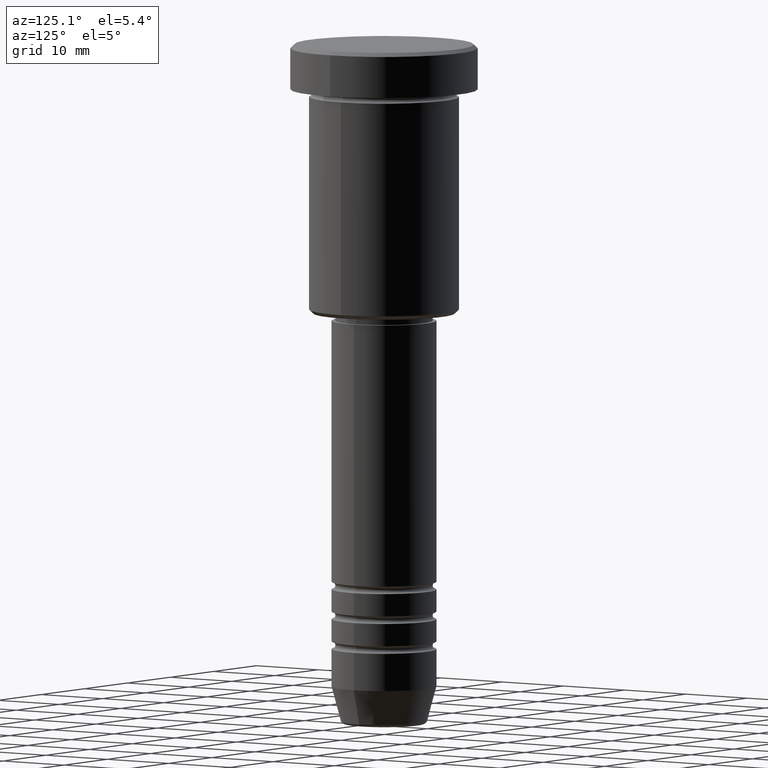
[diagram: clean part render]
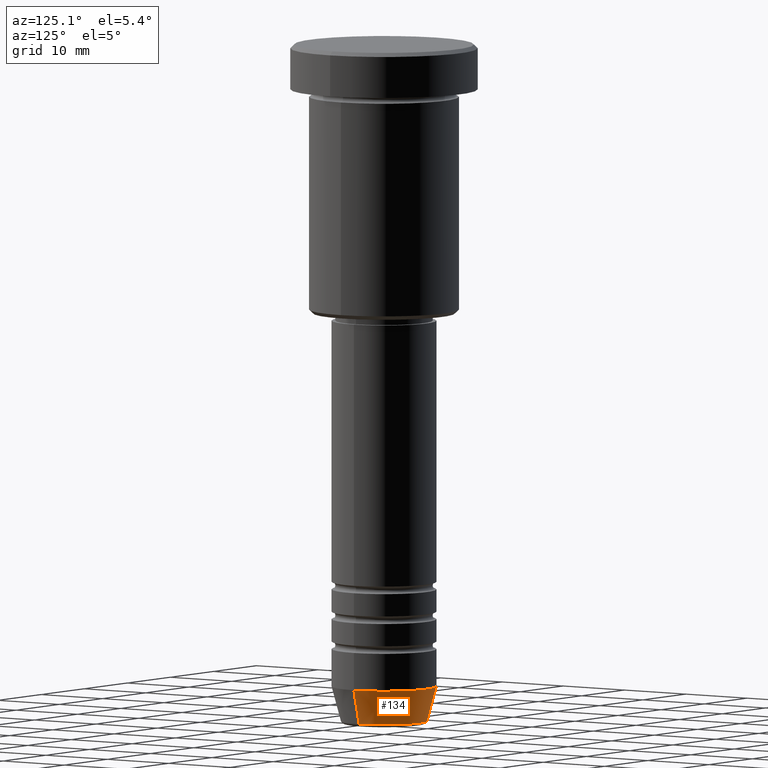
[diagram: same view with one face highlighted and labeled with its STEP entity id]
A machine part, auxiliary view. The second image highlights one B-rep face of the part: STEP entity #134.
In plain terms, the highlighted conical surface has half-angle 15 deg.
Its self-contained STEP definition (entity closure, byte-faithful):
#34 = CONICAL_SURFACE ( 'NONE', #933, 7.000000000000000000, 0.2617993877991500740 ) ;
#62 = EDGE_CURVE ( 'NONE', #689, #390, #606, .T. ) ;
#88 = DIRECTION ( 'NONE',  ( 1.000000000000000000, 0.000000000000000000, 0.000000000000000000 ) ) ;
#105 = VERTEX_POINT ( 'NONE', #1039 ) ;
#123 = AXIS2_PLACEMENT_3D ( 'NONE', #467, #361, #88 ) ;
#134 = ADVANCED_FACE ( 'NONE', ( #423 ), #34, .T. ) ;
#352 = ORIENTED_EDGE ( 'NONE', *, *, #865, .T. ) ;
#361 = DIRECTION ( 'NONE',  ( -0.000000000000000000, -0.000000000000000000, 1.000000000000000000 ) ) ;
#390 = VERTEX_POINT ( 'NONE', #859 ) ;
#423 = FACE_OUTER_BOUND ( 'NONE', #658, .T. ) ;
#467 = CARTESIAN_POINT ( 'NONE',  ( 0.000000000000000000, 0.000000000000000000, -90.62940952255125637 ) ) ;
#523 = CARTESIAN_POINT ( 'NONE',  ( -7.000000000000000000, 8.572527594031473190E-16, -86.00000000000000000 ) ) ;
#556 = VECTOR ( 'NONE', #794, 1000.000000000000000 ) ;
#557 = VECTOR ( 'NONE', #861, 1000.000000000000000 ) ;
#606 = LINE ( 'NONE', #684, #557 ) ;
#658 = EDGE_LOOP ( 'NONE', ( #352, #754, #1165, #681 ) ) ;
#664 = VERTEX_POINT ( 'NONE', #1112 ) ;
#681 = ORIENTED_EDGE ( 'NONE', *, *, #62, .F. ) ;
#684 = CARTESIAN_POINT ( 'NONE',  ( 7.000000000000000000, 0.000000000000000000, -86.00000000000000000 ) ) ;
#685 = AXIS2_PLACEMENT_3D ( 'NONE', #1003, #810, #729 ) ;
#689 = VERTEX_POINT ( 'NONE', #773 ) ;
#729 = DIRECTION ( 'NONE',  ( 1.000000000000000000, 0.000000000000000000, 0.000000000000000000 ) ) ;
#736 = DIRECTION ( 'NONE',  ( 1.000000000000000000, 0.000000000000000000, 0.000000000000000000 ) ) ;
#754 = ORIENTED_EDGE ( 'NONE', *, *, #1060, .T. ) ;
#761 = CIRCLE ( 'NONE', #685, 7.000000000000000000 ) ;
#773 = CARTESIAN_POINT ( 'NONE',  ( 5.759553456999433330, 0.000000000000000000, -90.62940952255125637 ) ) ;
#787 = CARTESIAN_POINT ( 'NONE',  ( 0.000000000000000000, 0.000000000000000000, -86.00000000000000000 ) ) ;
#794 = DIRECTION ( 'NONE',  ( -0.2588190451025213501, 3.169619151431772337E-17, 0.9659258262890680902 ) ) ;
#796 = CIRCLE ( 'NONE', #123, 5.759553456999433330 ) ;
#810 = DIRECTION ( 'NONE',  ( -0.000000000000000000, -0.000000000000000000, 1.000000000000000000 ) ) ;
#820 = EDGE_CURVE ( 'NONE', #390, #664, #761, .T. ) ;
#859 = CARTESIAN_POINT ( 'NONE',  ( 7.000000000000000000, 0.000000000000000000, -86.00000000000000000 ) ) ;
#861 = DIRECTION ( 'NONE',  ( 0.2588190451025213501, 0.000000000000000000, 0.9659258262890680902 ) ) ;
#865 = EDGE_CURVE ( 'NONE', #689, #105, #796, .T. ) ;
#895 = LINE ( 'NONE', #523, #556 ) ;
#933 = AXIS2_PLACEMENT_3D ( 'NONE', #787, #1150, #736 ) ;
#1003 = CARTESIAN_POINT ( 'NONE',  ( 0.000000000000000000, 0.000000000000000000, -86.00000000000000000 ) ) ;
#1039 = CARTESIAN_POINT ( 'NONE',  ( -5.759553456999433330, 7.812973149831950787E-16, -90.62940952255125637 ) ) ;
#1060 = EDGE_CURVE ( 'NONE', #105, #664, #895, .T. ) ;
#1112 = CARTESIAN_POINT ( 'NONE',  ( -7.000000000000000000, 8.572527594031473190E-16, -86.00000000000000000 ) ) ;
#1150 = DIRECTION ( 'NONE',  ( -0.000000000000000000, -0.000000000000000000, 1.000000000000000000 ) ) ;
#1165 = ORIENTED_EDGE ( 'NONE', *, *, #820, .F. ) ;